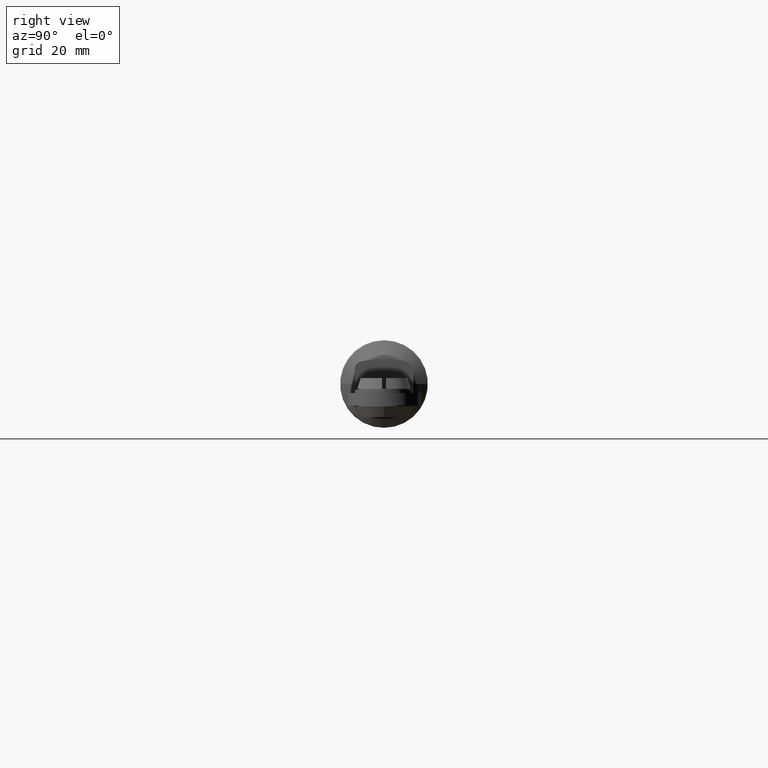
[diagram: clean part render]
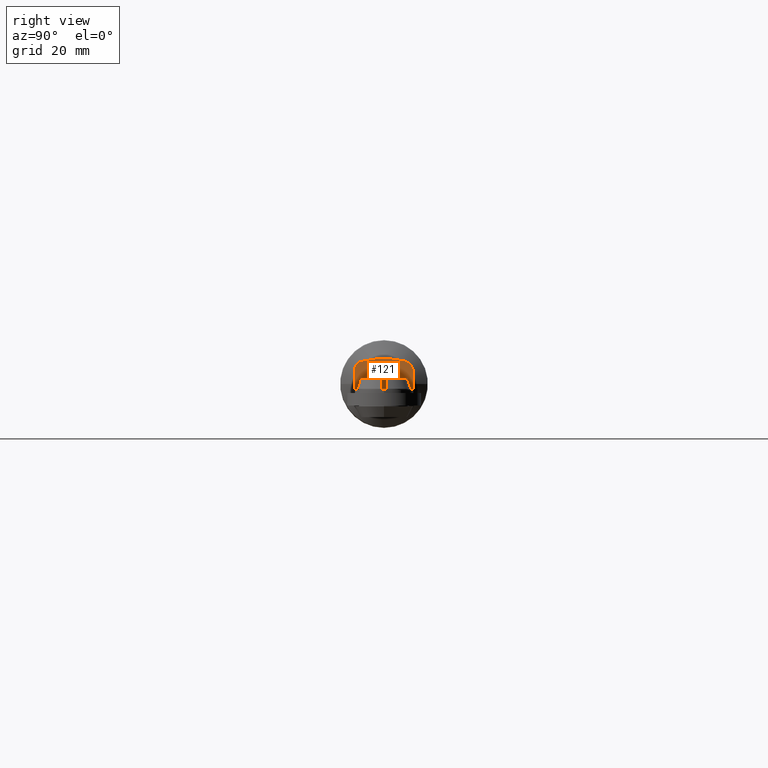
[diagram: same view with one face highlighted and labeled with its STEP entity id]
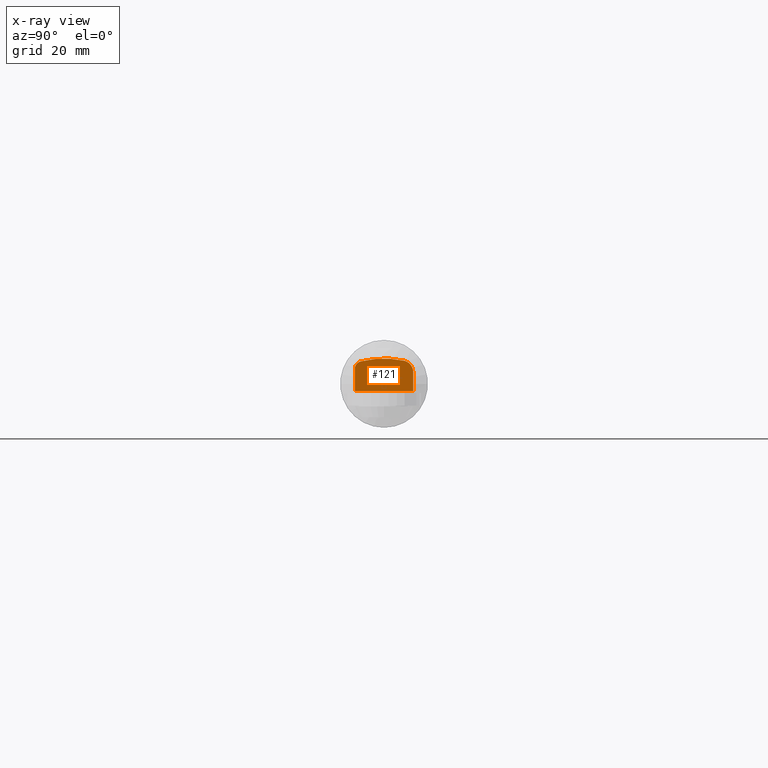
[diagram: x-ray of the same camera — body ghosted, the highlighted face saturated]
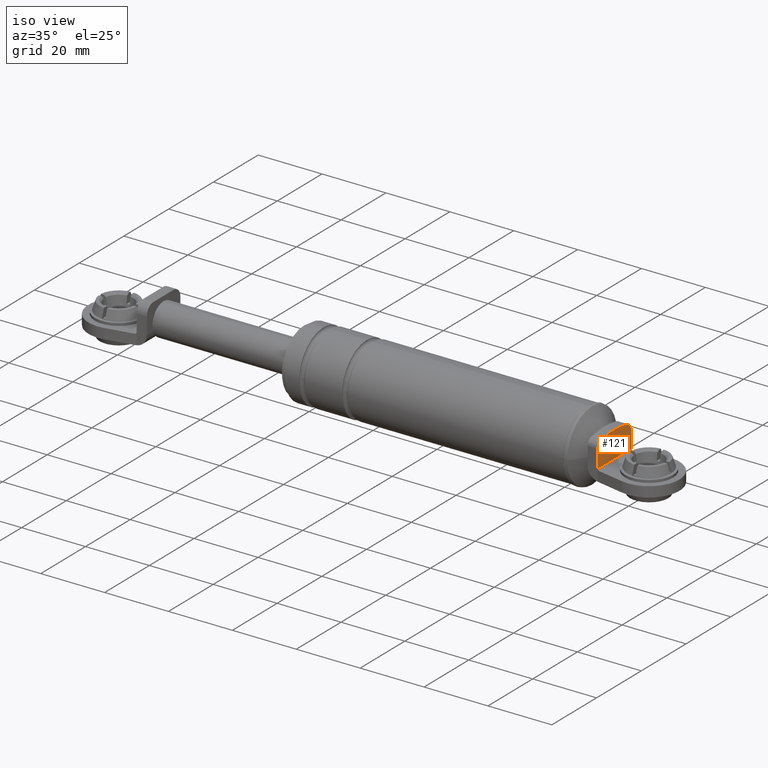
[diagram: same view with one face highlighted and labeled with its STEP entity id]
A machine part, right view. The second image highlights one B-rep face of the part: STEP entity #121.
The next image is the same camera in x-ray: the body ghosted, the highlighted face saturated — about 0% of this face is hidden behind the body in this view.
A second angle (iso view) of the same face is appended — the face is thin or edge-on in the first view.
In plain terms, the highlighted planar face has unit normal (1, 0, 0).
Its self-contained STEP definition (entity closure, byte-faithful):
#121=ADVANCED_FACE('',(#359),#358,.T.);
#358=PLANE('',#1887);
#359=FACE_OUTER_BOUND('',#1888,.T.);
#1884=CARTESIAN_POINT('',(2.75642105705E+002,-9.00000000000E+000,1.22981489680E+002));
#1885=DIRECTION('',(1.00000000000E+000,0.00000000000E+000,0.00000000000E+000));
#1886=DIRECTION('',(0.00000000000E+000,0.00000000000E+000,-1.00000000000E+000));
#1887=AXIS2_PLACEMENT_3D('',#1884,#1885,#1886);
#1888=EDGE_LOOP('',(#2922,#2923,#2924,#2925,#2926,#2927));
#2922=ORIENTED_EDGE('',*,*,#3678,.T.);
#2923=ORIENTED_EDGE('',*,*,#3679,.T.);
#2924=ORIENTED_EDGE('',*,*,#3680,.T.);
#2925=ORIENTED_EDGE('',*,*,#3681,.T.);
#2926=ORIENTED_EDGE('',*,*,#3682,.F.);
#2927=ORIENTED_EDGE('',*,*,#3683,.F.);
#3678=EDGE_CURVE('',#4343,#4344,#4345,.T.);
#3679=EDGE_CURVE('',#4344,#4351,#4352,.T.);
#3680=EDGE_CURVE('',#4351,#4358,#4359,.T.);
#3681=EDGE_CURVE('',#4358,#4365,#4366,.T.);
#3682=EDGE_CURVE('',#4372,#4365,#4373,.T.);
#3683=EDGE_CURVE('',#4343,#4372,#4379,.T.);
#4343=VERTEX_POINT('',#6781);
#4344=VERTEX_POINT('',#6782);
#4345=LINE('',#6783,#6784);
#4351=VERTEX_POINT('',#6786);
#4352=CIRCLE('',#6790,3.00000000000E+000);
#4358=VERTEX_POINT('',#6791);
#4359=CIRCLE('',#6795,2.50000000000E+001);
#4365=VERTEX_POINT('',#6796);
#4366=CIRCLE('',#6800,2.00000000000E+000);
#4372=VERTEX_POINT('',#6801);
#4373=LINE('',#6802,#6803);
#4379=LINE('',#6805,#6806);
#6781=CARTESIAN_POINT('',(2.75642105705E+002,7.50000000000E+000,1.13152983996E+002));
#6782=CARTESIAN_POINT('',(2.75642105705E+002,7.50000000000E+000,1.17987839464E+002));
#6783=CARTESIAN_POINT('',(2.75642105705E+002,7.50000000000E+000,1.13152983996E+002));
#6784=VECTOR('',#6785,4.83485546736E+000);
#6785=DIRECTION('',(0.00000000000E+000,0.00000000000E+000,1.00000000000E+000));
#6786=CARTESIAN_POINT('',(2.75642105705E+002,5.11363636364E+000,1.20924410664E+002));
#6787=CARTESIAN_POINT('',(2.75642105705E+002,4.50000000000E+000,1.17987839464E+002));
#6788=DIRECTION('',(1.00000000000E+000,0.00000000000E+000,0.00000000000E+000));
#6789=DIRECTION('',(-0.00000000000E+000,-0.00000000000E+000,1.00000000000E+000));
#6790=AXIS2_PLACEMENT_3D('',#6787,#6788,#6789);
#6791=CARTESIAN_POINT('',(2.75642105705E+002,-5.97826086957E+000,1.20727670338E+002));
#6792=CARTESIAN_POINT('',(2.75642105705E+002,0.00000000000E+000,9.64529839963E+001));
#6793=DIRECTION('',(1.00000000000E+000,0.00000000000E+000,-0.00000000000E+000));
#6794=DIRECTION('',(-0.00000000000E+000,-0.00000000000E+000,-1.00000000000E+000));
#6795=AXIS2_PLACEMENT_3D('',#6792,#6793,#6794);
#6796=CARTESIAN_POINT('',(2.75642105705E+002,-7.50000000000E+000,1.18785695430E+002));
#6797=CARTESIAN_POINT('',(2.75642105705E+002,-5.50000000000E+000,1.18785695430E+002));
#6798=DIRECTION('',(1.00000000000E+000,0.00000000000E+000,0.00000000000E+000));
#6799=DIRECTION('',(-0.00000000000E+000,-0.00000000000E+000,1.00000000000E+000));
#6800=AXIS2_PLACEMENT_3D('',#6797,#6798,#6799);
#6801=CARTESIAN_POINT('',(2.75642105705E+002,-7.50000000000E+000,1.13152983996E+002));
#6802=CARTESIAN_POINT('',(2.75642105705E+002,-7.50000000000E+000,1.13152983996E+002));
#6803=VECTOR('',#6804,5.63271143413E+000);
#6804=DIRECTION('',(0.00000000000E+000,0.00000000000E+000,1.00000000000E+000));
#6805=CARTESIAN_POINT('',(2.75642105705E+002,7.50000000000E+000,1.13152983996E+002));
#6806=VECTOR('',#6807,1.50000000000E+001);
#6807=DIRECTION('',(0.00000000000E+000,-1.00000000000E+000,0.00000000000E+000));